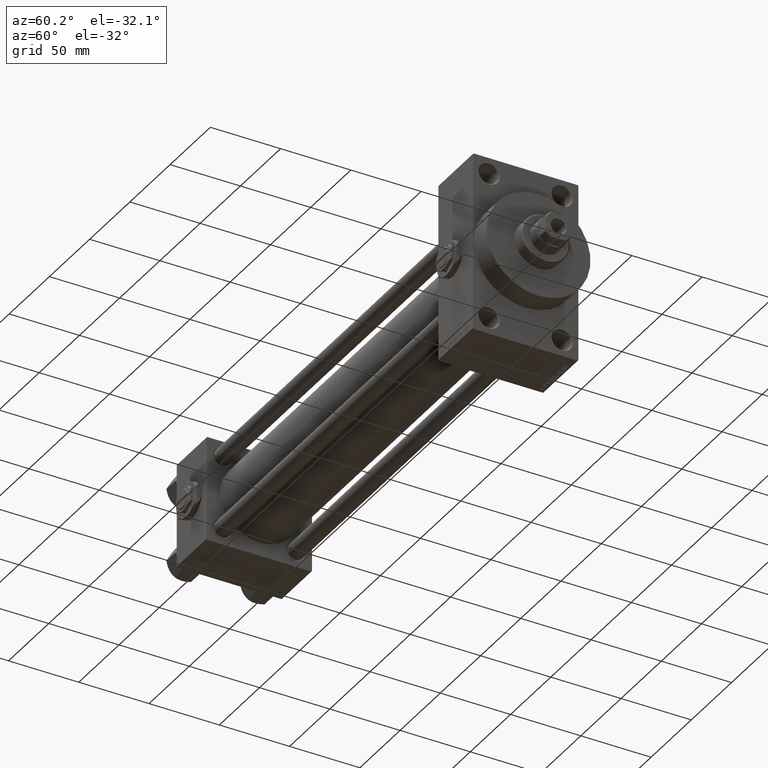
[diagram: clean part render]
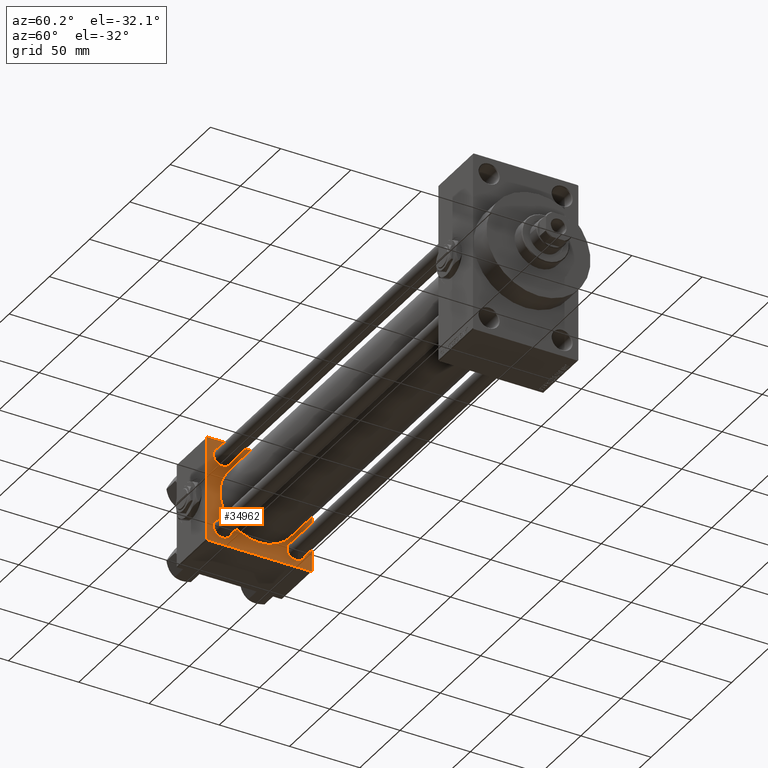
[diagram: same view with one face highlighted and labeled with its STEP entity id]
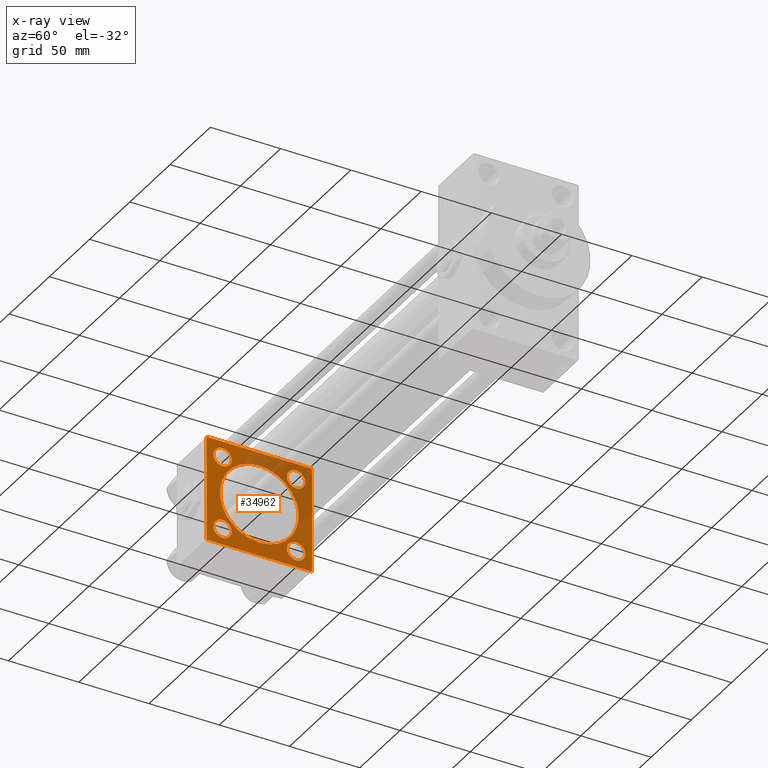
[diagram: x-ray of the same camera — body ghosted, the highlighted face saturated]
A machine part, auxiliary view. The second image highlights one B-rep face of the part: STEP entity #34962.
The next image is the same camera in x-ray: the body ghosted, the highlighted face saturated — about 28% of this face is hidden behind the body in this view.
In plain terms, the highlighted planar face has unit normal (-1, 0, 0).
Its self-contained STEP definition (entity closure, byte-faithful):
#306 = CARTESIAN_POINT ( 'NONE',  ( 37.00000000000000000, 36.99999999999999289, 37.50000000000000000 ) ) ;
#337 = PLANE ( 'NONE',  #23839 ) ;
#833 = FACE_BOUND ( 'NONE', #37854, .T. ) ;
#856 = VERTEX_POINT ( 'NONE', #40358 ) ;
#1048 = CARTESIAN_POINT ( 'NONE',  ( 36.99999999999997868, -2.602085213965210642E-15, 0.000000000000000000 ) ) ;
#1081 = FACE_BOUND ( 'NONE', #19429, .T. ) ;
#1287 = ORIENTED_EDGE ( 'NONE', *, *, #8144, .T. ) ;
#2394 = LINE ( 'NONE', #33916, #11820 ) ;
#2888 = CARTESIAN_POINT ( 'NONE',  ( 37.00000000000000000, 26.14999999999999858, 19.64999999999999858 ) ) ;
#3534 = AXIS2_PLACEMENT_3D ( 'NONE', #49572, #49827, #31007 ) ;
#3965 = DIRECTION ( 'NONE',  ( 0.000000000000000000, 0.000000000000000000, -1.000000000000000000 ) ) ;
#4626 = CARTESIAN_POINT ( 'NONE',  ( 37.00000000000000000, -26.14999999999999147, 32.64999999999996305 ) ) ;
#4647 = DIRECTION ( 'NONE',  ( -0.000000000000000000, 0.000000000000000000, 1.000000000000000000 ) ) ;
#5001 = EDGE_CURVE ( 'NONE', #37505, #21209, #35417, .T. ) ;
#5573 = EDGE_CURVE ( 'NONE', #25650, #19581, #27337, .T. ) ;
#6337 = CARTESIAN_POINT ( 'NONE',  ( 36.99999999999997868, -2.602085213965210642E-15, 0.000000000000000000 ) ) ;
#6477 = VECTOR ( 'NONE', #35784, 1000.000000000000114 ) ;
#6665 = EDGE_CURVE ( 'NONE', #26098, #29914, #25936, .T. ) ;
#6783 = CARTESIAN_POINT ( 'NONE',  ( 37.00000000000000000, -37.50000000000000711, 36.99999999999999289 ) ) ;
#7188 = EDGE_CURVE ( 'NONE', #48685, #43510, #32222, .T. ) ;
#7585 = CARTESIAN_POINT ( 'NONE',  ( 37.00000000000000000, -37.00000000000000711, 37.49999999999999289 ) ) ;
#8041 = DIRECTION ( 'NONE',  ( 0.000000000000000000, 0.7071067811865524577, -0.7071067811865426878 ) ) ;
#8144 = EDGE_CURVE ( 'NONE', #21209, #37505, #50139, .T. ) ;
#8373 = ORIENTED_EDGE ( 'NONE', *, *, #6665, .T. ) ;
#8590 = CARTESIAN_POINT ( 'NONE',  ( 37.00000000000000000, 37.49999999999999289, -37.50000000000000000 ) ) ;
#8607 = EDGE_CURVE ( 'NONE', #43510, #48685, #26635, .T. ) ;
#8732 = FACE_BOUND ( 'NONE', #32463, .T. ) ;
#9307 = DIRECTION ( 'NONE',  ( 0.000000000000000000, 0.000000000000000000, 1.000000000000000000 ) ) ;
#9487 = AXIS2_PLACEMENT_3D ( 'NONE', #47959, #47463, #9307 ) ;
#9531 = AXIS2_PLACEMENT_3D ( 'NONE', #38016, #49726, #27095 ) ;
#9565 = AXIS2_PLACEMENT_3D ( 'NONE', #46858, #43539, #47606 ) ;
#9813 = CIRCLE ( 'NONE', #37419, 28.00000000000000000 ) ;
#10251 = DIRECTION ( 'NONE',  ( -0.000000000000000000, 0.7071067811865474617, 0.7071067811865474617 ) ) ;
#10511 = EDGE_LOOP ( 'NONE', ( #37366, #38447, #12009, #8373, #20447, #25100, #12081, #50065 ) ) ;
#10877 = CARTESIAN_POINT ( 'NONE',  ( 37.00000000000000000, 26.14999999999999858, -26.15000000000000213 ) ) ;
#11816 = CARTESIAN_POINT ( 'NONE',  ( 37.00000000000000000, -26.14999999999999147, -32.64999999999995595 ) ) ;
#11820 = VECTOR ( 'NONE', #29603, 1000.000000000000000 ) ;
#12009 = ORIENTED_EDGE ( 'NONE', *, *, #16412, .F. ) ;
#12081 = ORIENTED_EDGE ( 'NONE', *, *, #39063, .T. ) ;
#12179 = VERTEX_POINT ( 'NONE', #20209 ) ;
#12371 = EDGE_CURVE ( 'NONE', #12179, #30704, #18370, .T. ) ;
#12413 = CARTESIAN_POINT ( 'NONE',  ( 37.00000000000000000, -37.50000000000000711, 36.99999999999999289 ) ) ;
#12893 = CARTESIAN_POINT ( 'NONE',  ( 36.99999999999997868, 8.269258236473784371E-16, -28.00000000000000000 ) ) ;
#13378 = LINE ( 'NONE', #36512, #38122 ) ;
#13839 = ORIENTED_EDGE ( 'NONE', *, *, #5573, .T. ) ;
#14354 = VERTEX_POINT ( 'NONE', #19111 ) ;
#14474 = DIRECTION ( 'NONE',  ( 0.000000000000000000, 0.000000000000000000, 1.000000000000000000 ) ) ;
#14793 = DIRECTION ( 'NONE',  ( -1.000000000000000000, 0.000000000000000000, -0.000000000000000000 ) ) ;
#15554 = DIRECTION ( 'NONE',  ( 0.000000000000000000, 0.000000000000000000, 1.000000000000000000 ) ) ;
#15762 = VERTEX_POINT ( 'NONE', #36562 ) ;
#16137 = EDGE_CURVE ( 'NONE', #29914, #40938, #13378, .T. ) ;
#16412 = EDGE_CURVE ( 'NONE', #26098, #30704, #42621, .T. ) ;
#16466 = LINE ( 'NONE', #12413, #6477 ) ;
#16646 = AXIS2_PLACEMENT_3D ( 'NONE', #10877, #26376, #41883 ) ;
#17002 = CARTESIAN_POINT ( 'NONE',  ( 37.00000000000000000, 37.49999999999999289, 37.00000000000000000 ) ) ;
#17048 = EDGE_CURVE ( 'NONE', #40938, #45201, #16466, .T. ) ;
#17300 = CIRCLE ( 'NONE', #3534, 6.500000000000002665 ) ;
#18370 = LINE ( 'NONE', #48892, #46082 ) ;
#18708 = CARTESIAN_POINT ( 'NONE',  ( 37.00000000000000000, -37.00000000000002132, -37.50000000000000711 ) ) ;
#18790 = AXIS2_PLACEMENT_3D ( 'NONE', #21503, #32458, #36750 ) ;
#19111 = CARTESIAN_POINT ( 'NONE',  ( 37.00000000000000000, -37.50000000000000000, -37.00000000000003553 ) ) ;
#19429 = EDGE_LOOP ( 'NONE', ( #20597, #34610 ) ) ;
#19581 = VERTEX_POINT ( 'NONE', #47591 ) ;
#19583 = EDGE_CURVE ( 'NONE', #42228, #47829, #9813, .T. ) ;
#19592 = ORIENTED_EDGE ( 'NONE', *, *, #20181, .T. ) ;
#20181 = EDGE_CURVE ( 'NONE', #19581, #25650, #26926, .T. ) ;
#20209 = CARTESIAN_POINT ( 'NONE',  ( 37.00000000000000000, 36.99999999999997868, -37.50000000000000000 ) ) ;
#20447 = ORIENTED_EDGE ( 'NONE', *, *, #16137, .T. ) ;
#20545 = VECTOR ( 'NONE', #24092, 1000.000000000000000 ) ;
#20597 = ORIENTED_EDGE ( 'NONE', *, *, #29331, .T. ) ;
#21209 = VERTEX_POINT ( 'NONE', #11816 ) ;
#21404 = CARTESIAN_POINT ( 'NONE',  ( 37.00000000000000000, -26.14999999999999147, 26.15000000000000924 ) ) ;
#21503 = CARTESIAN_POINT ( 'NONE',  ( 37.00000000000000000, -26.14999999999999147, 26.15000000000000924 ) ) ;
#21531 = DIRECTION ( 'NONE',  ( 0.000000000000000000, 0.000000000000000000, 1.000000000000000000 ) ) ;
#23401 = CARTESIAN_POINT ( 'NONE',  ( 36.99999999999997868, -2.602085213965210642E-15, 28.00000000000000000 ) ) ;
#23743 = FACE_OUTER_BOUND ( 'NONE', #10511, .T. ) ;
#23839 = AXIS2_PLACEMENT_3D ( 'NONE', #28047, #43556, #4647 ) ;
#24092 = DIRECTION ( 'NONE',  ( 0.000000000000000000, -1.000000000000000000, -9.251858538542972814E-17 ) ) ;
#24131 = VECTOR ( 'NONE', #29490, 1000.000000000000114 ) ;
#25100 = ORIENTED_EDGE ( 'NONE', *, *, #17048, .T. ) ;
#25351 = CARTESIAN_POINT ( 'NONE',  ( 37.00000000000000000, -26.14999999999999147, -26.15000000000000924 ) ) ;
#25383 = VERTEX_POINT ( 'NONE', #44325 ) ;
#25650 = VERTEX_POINT ( 'NONE', #4626 ) ;
#25936 = LINE ( 'NONE', #30006, #24131 ) ;
#26098 = VERTEX_POINT ( 'NONE', #17002 ) ;
#26376 = DIRECTION ( 'NONE',  ( -1.000000000000000000, 0.000000000000000000, -0.000000000000000000 ) ) ;
#26419 = CIRCLE ( 'NONE', #16646, 6.500000000000002665 ) ;
#26635 = CIRCLE ( 'NONE', #9565, 6.500000000000002665 ) ;
#26926 = CIRCLE ( 'NONE', #18790, 6.499999999999953815 ) ;
#27095 = DIRECTION ( 'NONE',  ( 0.000000000000000000, 0.000000000000000000, 1.000000000000000000 ) ) ;
#27119 = EDGE_CURVE ( 'NONE', #12179, #856, #47731, .T. ) ;
#27337 = CIRCLE ( 'NONE', #28937, 6.499999999999953815 ) ;
#28047 = CARTESIAN_POINT ( 'NONE',  ( 37.00000000000000000, 0.000000000000000000, 0.000000000000000000 ) ) ;
#28059 = EDGE_LOOP ( 'NONE', ( #36808, #34560 ) ) ;
#28510 = DIRECTION ( 'NONE',  ( 1.000000000000000000, -0.000000000000000000, 0.000000000000000000 ) ) ;
#28937 = AXIS2_PLACEMENT_3D ( 'NONE', #21404, #14793, #15554 ) ;
#28949 = EDGE_CURVE ( 'NONE', #47829, #42228, #46715, .T. ) ;
#29331 = EDGE_CURVE ( 'NONE', #15762, #25383, #26419, .T. ) ;
#29490 = DIRECTION ( 'NONE',  ( 0.000000000000000000, -0.7071067811865474617, 0.7071067811865474617 ) ) ;
#29603 = DIRECTION ( 'NONE',  ( 0.000000000000000000, 9.251858538542971581E-17, -1.000000000000000000 ) ) ;
#29914 = VERTEX_POINT ( 'NONE', #306 ) ;
#30006 = CARTESIAN_POINT ( 'NONE',  ( 37.00000000000000000, 36.99999999999999289, 37.50000000000000000 ) ) ;
#30704 = VERTEX_POINT ( 'NONE', #33373 ) ;
#31007 = DIRECTION ( 'NONE',  ( 0.000000000000000000, 0.000000000000000000, 1.000000000000000000 ) ) ;
#31509 = ORIENTED_EDGE ( 'NONE', *, *, #19583, .F. ) ;
#31834 = DIRECTION ( 'NONE',  ( 0.000000000000000000, 0.000000000000000000, 1.000000000000000000 ) ) ;
#31939 = EDGE_CURVE ( 'NONE', #14354, #856, #49731, .T. ) ;
#32222 = CIRCLE ( 'NONE', #9487, 6.500000000000002665 ) ;
#32458 = DIRECTION ( 'NONE',  ( -1.000000000000000000, 0.000000000000000000, -0.000000000000000000 ) ) ;
#32463 = EDGE_LOOP ( 'NONE', ( #1287, #49201 ) ) ;
#33373 = CARTESIAN_POINT ( 'NONE',  ( 37.00000000000000000, 37.49999999999999289, -36.99999999999998579 ) ) ;
#33916 = CARTESIAN_POINT ( 'NONE',  ( 37.00000000000000000, -37.50000000000000711, 37.49999999999999289 ) ) ;
#34057 = VECTOR ( 'NONE', #3965, 1000.000000000000000 ) ;
#34508 = EDGE_CURVE ( 'NONE', #25383, #15762, #17300, .T. ) ;
#34560 = ORIENTED_EDGE ( 'NONE', *, *, #7188, .T. ) ;
#34610 = ORIENTED_EDGE ( 'NONE', *, *, #34508, .T. ) ;
#34962 = ADVANCED_FACE ( 'NONE', ( #8732, #1081, #35177, #46626, #833, #23743 ), #337, .F. ) ;
#35177 = FACE_BOUND ( 'NONE', #49744, .T. ) ;
#35189 = ORIENTED_EDGE ( 'NONE', *, *, #28949, .F. ) ;
#35348 = AXIS2_PLACEMENT_3D ( 'NONE', #6337, #41168, #14474 ) ;
#35417 = CIRCLE ( 'NONE', #41914, 6.499999999999946709 ) ;
#35474 = CARTESIAN_POINT ( 'NONE',  ( 37.00000000000000000, 37.49999999999999289, 37.50000000000000000 ) ) ;
#35784 = DIRECTION ( 'NONE',  ( -0.000000000000000000, -0.7071067811865474617, -0.7071067811865474617 ) ) ;
#35862 = CARTESIAN_POINT ( 'NONE',  ( 37.00000000000000000, -26.14999999999999147, -19.65000000000006253 ) ) ;
#36014 = DIRECTION ( 'NONE',  ( 0.000000000000000000, -1.000000000000000000, -9.251858538542971581E-17 ) ) ;
#36512 = CARTESIAN_POINT ( 'NONE',  ( 37.00000000000000000, 37.49999999999999289, 37.50000000000000000 ) ) ;
#36562 = CARTESIAN_POINT ( 'NONE',  ( 37.00000000000000000, 26.14999999999999858, -32.65000000000000568 ) ) ;
#36750 = DIRECTION ( 'NONE',  ( 0.000000000000000000, 0.000000000000000000, 1.000000000000000000 ) ) ;
#36808 = ORIENTED_EDGE ( 'NONE', *, *, #8607, .T. ) ;
#37030 = DIRECTION ( 'NONE',  ( -1.000000000000000000, 0.000000000000000000, -0.000000000000000000 ) ) ;
#37366 = ORIENTED_EDGE ( 'NONE', *, *, #27119, .F. ) ;
#37419 = AXIS2_PLACEMENT_3D ( 'NONE', #1048, #28510, #31834 ) ;
#37505 = VERTEX_POINT ( 'NONE', #35862 ) ;
#37854 = EDGE_LOOP ( 'NONE', ( #35189, #31509 ) ) ;
#38016 = CARTESIAN_POINT ( 'NONE',  ( 37.00000000000000000, -26.14999999999999147, -26.15000000000000924 ) ) ;
#38122 = VECTOR ( 'NONE', #36014, 1000.000000000000000 ) ;
#38447 = ORIENTED_EDGE ( 'NONE', *, *, #12371, .T. ) ;
#39063 = EDGE_CURVE ( 'NONE', #45201, #14354, #2394, .T. ) ;
#40358 = CARTESIAN_POINT ( 'NONE',  ( 37.00000000000000000, -37.00000000000002132, -37.50000000000000711 ) ) ;
#40798 = VECTOR ( 'NONE', #8041, 1000.000000000000000 ) ;
#40938 = VERTEX_POINT ( 'NONE', #7585 ) ;
#41168 = DIRECTION ( 'NONE',  ( 1.000000000000000000, -0.000000000000000000, 0.000000000000000000 ) ) ;
#41883 = DIRECTION ( 'NONE',  ( 0.000000000000000000, 0.000000000000000000, 1.000000000000000000 ) ) ;
#41914 = AXIS2_PLACEMENT_3D ( 'NONE', #25351, #37030, #21531 ) ;
#42228 = VERTEX_POINT ( 'NONE', #12893 ) ;
#42621 = LINE ( 'NONE', #35474, #34057 ) ;
#43510 = VERTEX_POINT ( 'NONE', #2888 ) ;
#43539 = DIRECTION ( 'NONE',  ( -1.000000000000000000, 0.000000000000000000, -0.000000000000000000 ) ) ;
#43556 = DIRECTION ( 'NONE',  ( -1.000000000000000000, 0.000000000000000000, -0.000000000000000000 ) ) ;
#44325 = CARTESIAN_POINT ( 'NONE',  ( 37.00000000000000000, 26.14999999999999858, -19.65000000000000213 ) ) ;
#45201 = VERTEX_POINT ( 'NONE', #6783 ) ;
#45515 = CARTESIAN_POINT ( 'NONE',  ( 37.00000000000000000, 26.14999999999999858, 32.65000000000001279 ) ) ;
#46082 = VECTOR ( 'NONE', #10251, 1000.000000000000114 ) ;
#46626 = FACE_BOUND ( 'NONE', #28059, .T. ) ;
#46715 = CIRCLE ( 'NONE', #35348, 28.00000000000000000 ) ;
#46858 = CARTESIAN_POINT ( 'NONE',  ( 37.00000000000000000, 26.14999999999999858, 26.15000000000000213 ) ) ;
#47463 = DIRECTION ( 'NONE',  ( -1.000000000000000000, 0.000000000000000000, -0.000000000000000000 ) ) ;
#47591 = CARTESIAN_POINT ( 'NONE',  ( 37.00000000000000000, -26.14999999999999147, 19.65000000000005542 ) ) ;
#47606 = DIRECTION ( 'NONE',  ( 0.000000000000000000, 0.000000000000000000, 1.000000000000000000 ) ) ;
#47731 = LINE ( 'NONE', #8590, #20545 ) ;
#47829 = VERTEX_POINT ( 'NONE', #23401 ) ;
#47959 = CARTESIAN_POINT ( 'NONE',  ( 37.00000000000000000, 26.14999999999999858, 26.15000000000000213 ) ) ;
#48685 = VERTEX_POINT ( 'NONE', #45515 ) ;
#48892 = CARTESIAN_POINT ( 'NONE',  ( 37.00000000000000000, 37.49999999999999289, -36.99999999999998579 ) ) ;
#49201 = ORIENTED_EDGE ( 'NONE', *, *, #5001, .T. ) ;
#49572 = CARTESIAN_POINT ( 'NONE',  ( 37.00000000000000000, 26.14999999999999858, -26.15000000000000213 ) ) ;
#49726 = DIRECTION ( 'NONE',  ( -1.000000000000000000, 0.000000000000000000, -0.000000000000000000 ) ) ;
#49731 = LINE ( 'NONE', #18708, #40798 ) ;
#49744 = EDGE_LOOP ( 'NONE', ( #19592, #13839 ) ) ;
#49827 = DIRECTION ( 'NONE',  ( -1.000000000000000000, 0.000000000000000000, -0.000000000000000000 ) ) ;
#50065 = ORIENTED_EDGE ( 'NONE', *, *, #31939, .T. ) ;
#50139 = CIRCLE ( 'NONE', #9531, 6.499999999999946709 ) ;